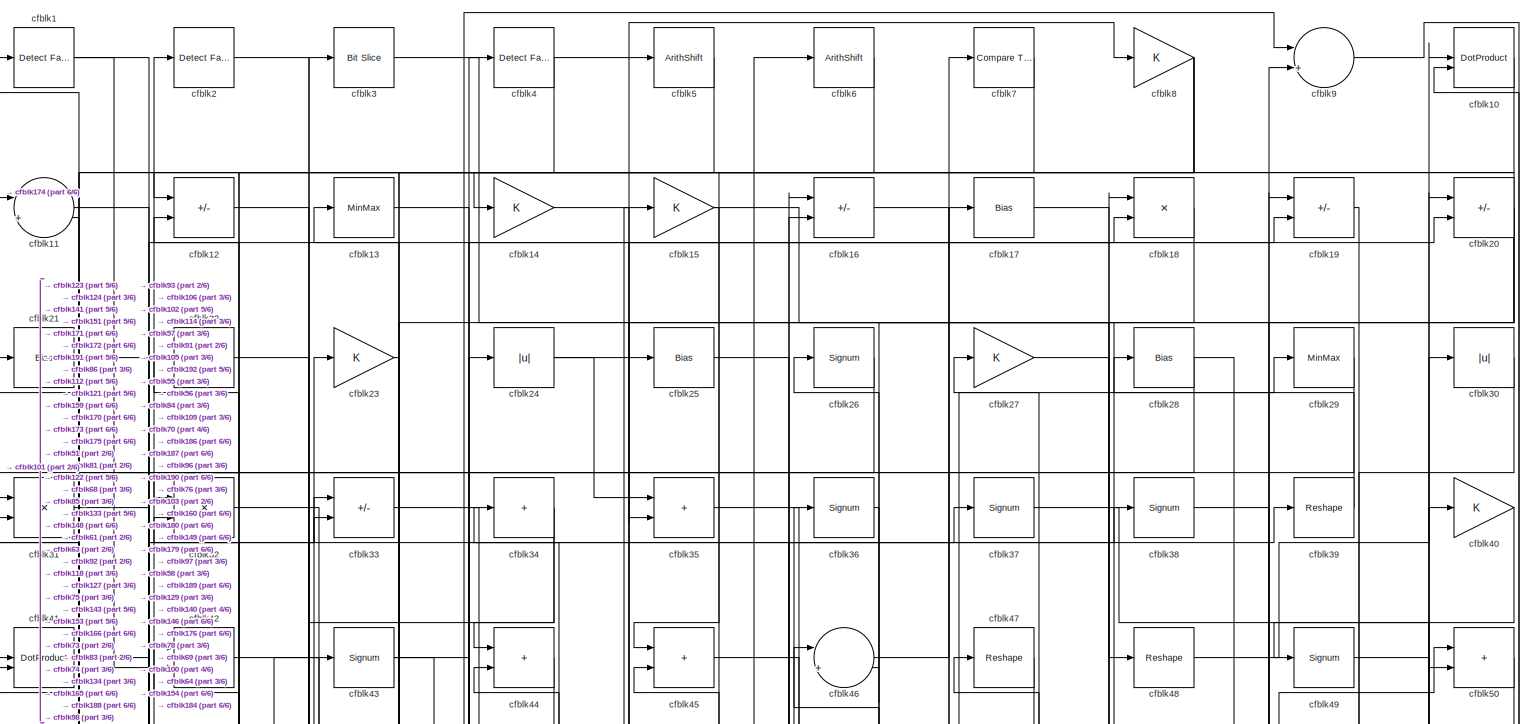
[diagram: root canvas - part 1/6, full width, top band]
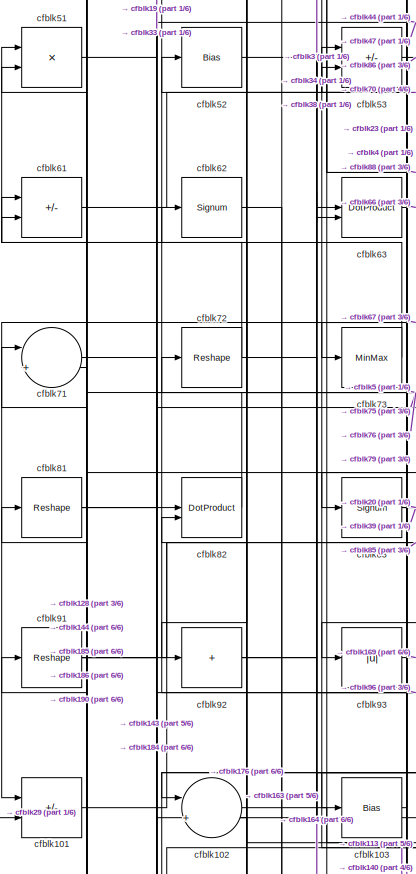
[diagram: root canvas - part 2/6, middle left region]
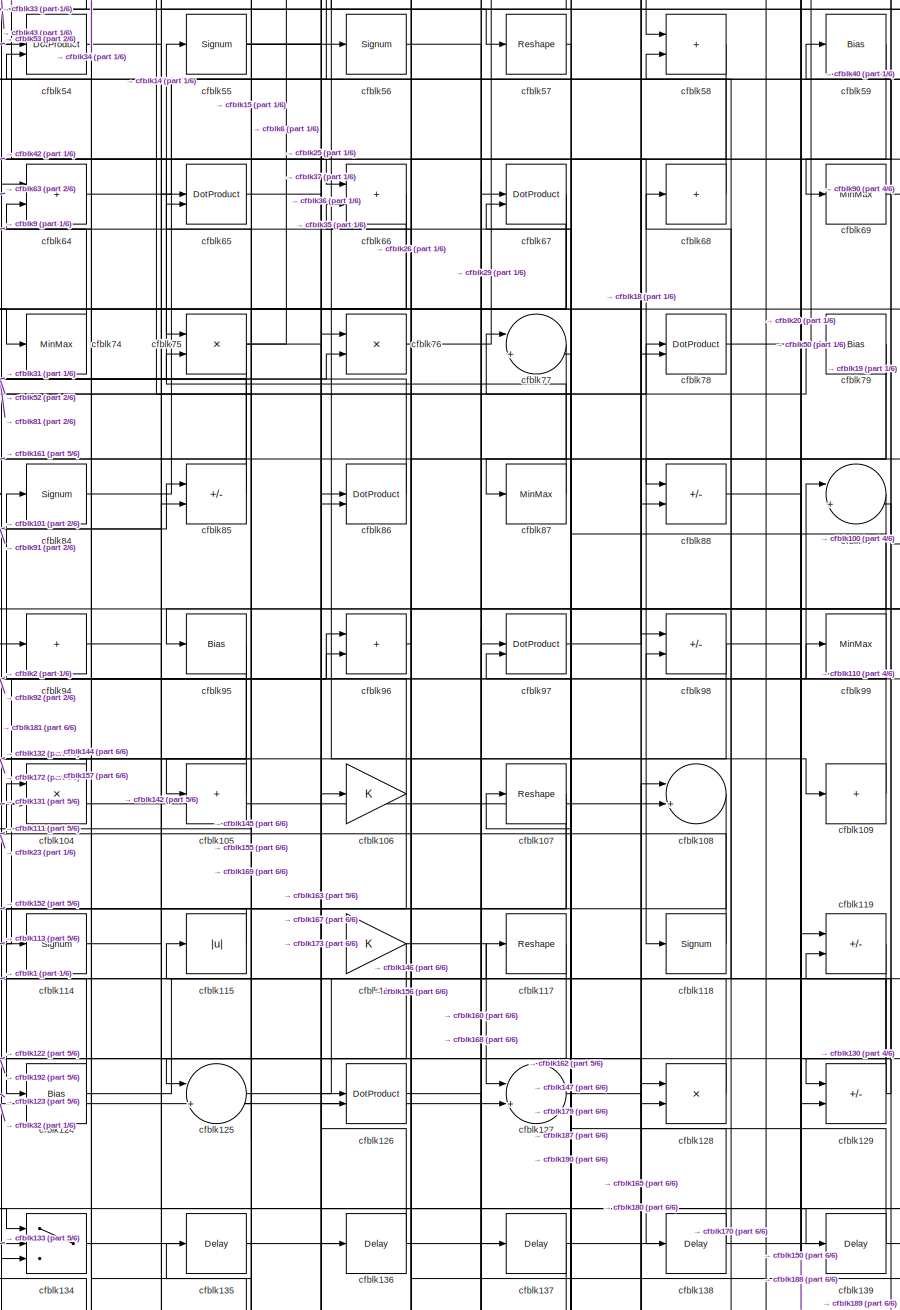
[diagram: root canvas - part 3/6, central region]
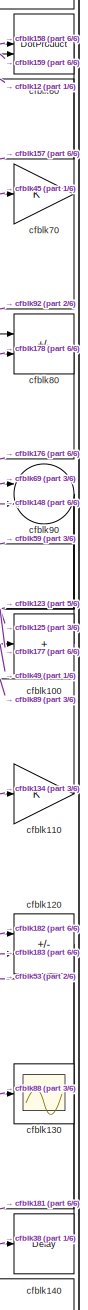
[diagram: root canvas - part 4/6, middle right region]
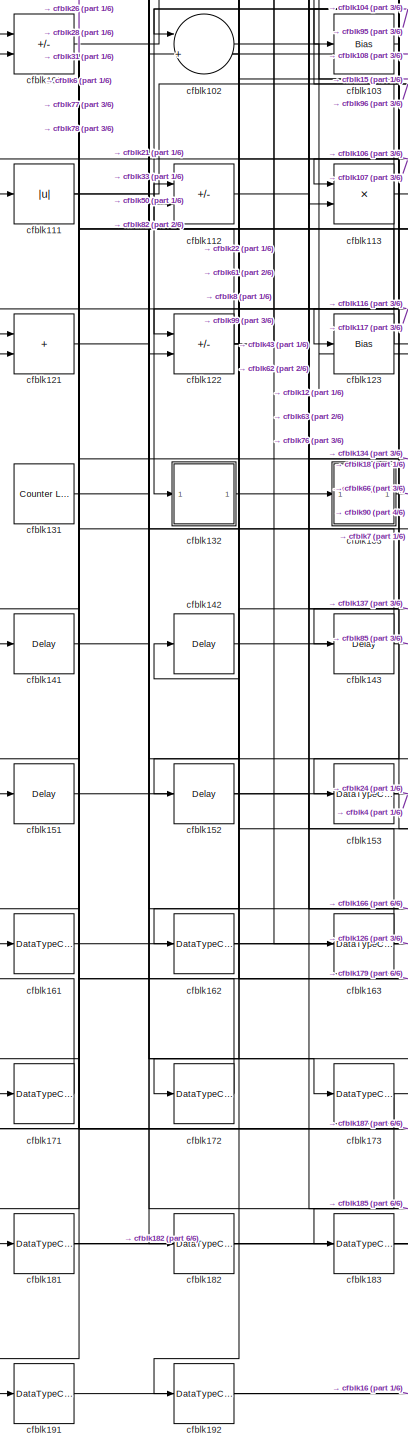
[diagram: root canvas - part 5/6, bottom left region]
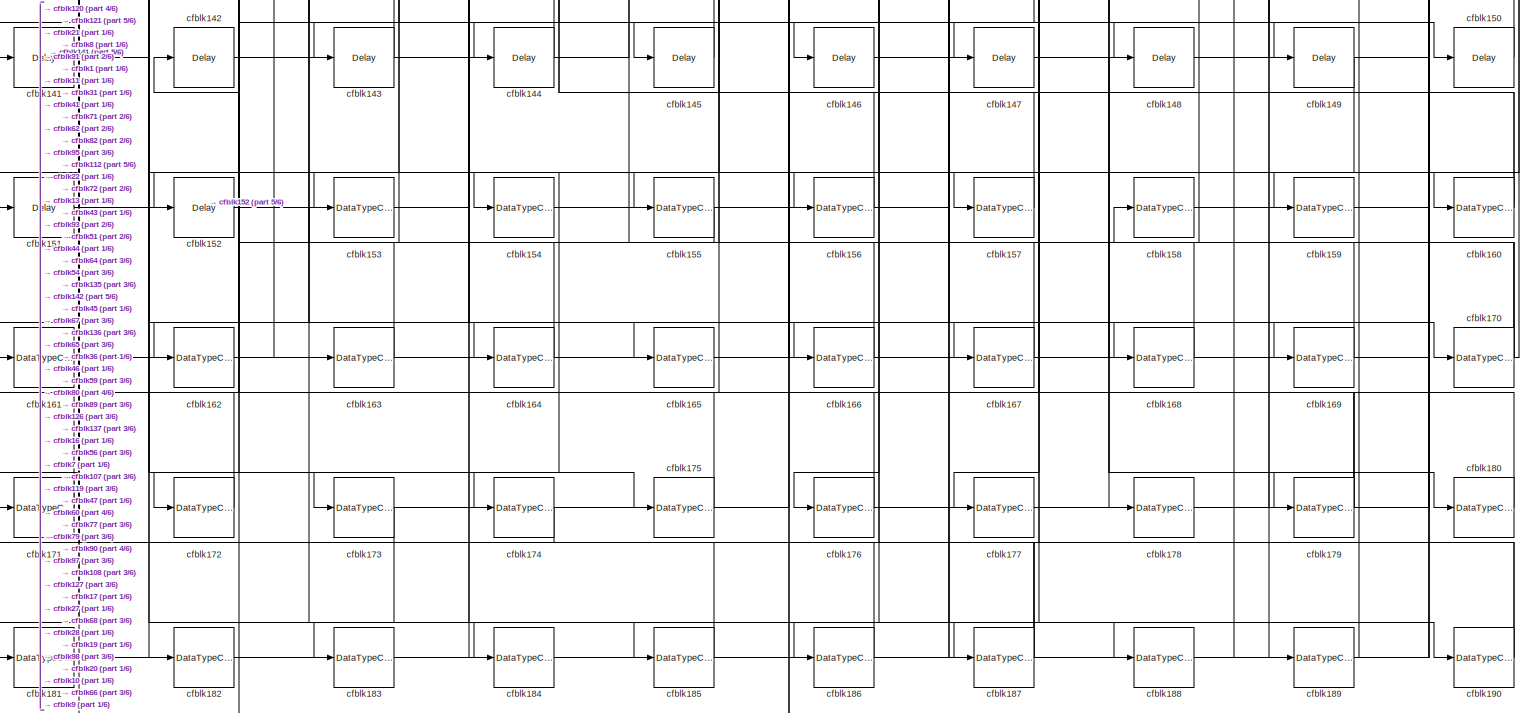
[diagram: root canvas - part 6/6, full width, bottom band]
MODEL slx_b2b5b32f064a
KIND model
CONFIG AbsTol = auto
CONFIG EnableMultiTasking = off
CONFIG FixedStep = auto
CONFIG MaxStep = auto
CONFIG MinStep = auto
CONFIG RelTol = 1e-3
CONFIG SampleTimeConstraint = Unconstrained
CONFIG SolverName = VariableStepAuto
CONFIG StartTime = 0.0
CONFIG StopTime = 10.0
BLOCK [Reference] cfblk1  REF=hdlsllib/Logic and Bit
Operations/Detect Fall
Negative
  SourceBlock = hdlsllib/Logic and Bit\nOperations/Detect Fall\nNegative
  SourceType = Detect Fall Negative
BLOCK [DotProduct] cfblk10
  OutDataTypeStr = Inherit: Inherit via internal rule
BLOCK [Sum] cfblk100
  IconShape = rectangular
  Inputs = +
BLOCK [Sum] cfblk101
  IconShape = rectangular
  Inputs = +-
BLOCK [Sum] cfblk102
  Inputs = |++
BLOCK [Bias] cfblk103
  Bias = 0.0
  SaturateOnIntegerOverflow = off
BLOCK [Product] cfblk104
  Inputs = */
  RndMeth = Zero
  SaturateOnIntegerOverflow = on
BLOCK [Sum] cfblk105
  IconShape = rectangular
  Inputs = +
BLOCK [Gain] cfblk106
BLOCK [Reshape] cfblk107
BLOCK [Sum] cfblk108
  Inputs = |++
BLOCK [Sum] cfblk109
  IconShape = rectangular
  Inputs = +
BLOCK [Sum] cfblk11
  Inputs = |++
BLOCK [Gain] cfblk110
BLOCK [Abs] cfblk111
  SaturateOnIntegerOverflow = off
BLOCK [Sum] cfblk112
  IconShape = rectangular
  Inputs = +-
BLOCK [Product] cfblk113
  Inputs = */
  RndMeth = Zero
  SaturateOnIntegerOverflow = on
BLOCK [Signum] cfblk114
BLOCK [Abs] cfblk115
  SaturateOnIntegerOverflow = off
BLOCK [Gain] cfblk116
BLOCK [Reshape] cfblk117
BLOCK [Signum] cfblk118
BLOCK [Sum] cfblk119
  IconShape = rectangular
  Inputs = +-
BLOCK [Sum] cfblk12
  IconShape = rectangular
  Inputs = +-
BLOCK [Sum] cfblk120
  IconShape = rectangular
  Inputs = +-
BLOCK [Sum] cfblk121
  IconShape = rectangular
BLOCK [Sum] cfblk122
  IconShape = rectangular
  Inputs = +-
BLOCK [Bias] cfblk123
  Bias = 0.0
  SaturateOnIntegerOverflow = off
BLOCK [Bias] cfblk124
  Bias = 0.0
  SaturateOnIntegerOverflow = off
BLOCK [Sum] cfblk125
  Inputs = |++
BLOCK [DotProduct] cfblk126
  OutDataTypeStr = Inherit: Inherit via internal rule
BLOCK [Sum] cfblk127
  Inputs = |++
BLOCK [Product] cfblk128
  Inputs = */
  RndMeth = Zero
  SaturateOnIntegerOverflow = on
BLOCK [Sum] cfblk129
  IconShape = rectangular
  Inputs = +-
BLOCK [MinMax] cfblk13
BLOCK [Scope] cfblk130
  Floating = off
  NumInputPorts = 1
  ScopeSpecificationString = Simulink.scopes.TimeScopeBlockCfg('CurrentConfiguration', extmgr.ConfigurationSet(extmgr.Configuration('Core','General UI',true),extmgr.Configuration('Core','Source UI',true),extmgr.Configuration('Sources','WiredSimulink',true,'DataLoggingVariableName','ScopeData2','DataLoggingSaveFormat','Array','DataLoggingLimitDataPoints',true,'DataLoggingDecimation','1'),extmgr.Configuration('Visuals','Time Do...<+868ch>
BLOCK [Reference] cfblk131  REF=hdlsllib/Sources/Counter
Limited
  SourceBlock = hdlsllib/Sources/Counter\nLimited
  SourceType = Counter Limited
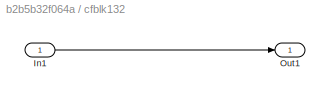
BLOCK [SubSystem] cfblk132
  LibrarySourceBlock = hdlsllib/Ports &\nSubsystems/Subsystem
BLOCK [Inport] cfblk132/In1
BLOCK [Outport] cfblk132/Out1
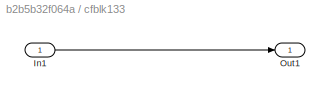
BLOCK [SubSystem] cfblk133
  LibrarySourceBlock = hdlsllib/Ports &\nSubsystems/Subsystem
BLOCK [Inport] cfblk133/In1
BLOCK [Outport] cfblk133/Out1
BLOCK [Switch] cfblk134
  InputSameDT = off
  SaturateOnIntegerOverflow = off
BLOCK [Delay] cfblk135
  InputPortMap = u0
  SampleTime = 1
BLOCK [Delay] cfblk136
  InputPortMap = u0
  SampleTime = 1
BLOCK [Delay] cfblk137
  InputPortMap = u0
  SampleTime = 1
BLOCK [Delay] cfblk138
  InputPortMap = u0
  SampleTime = 1
BLOCK [Delay] cfblk139
  InputPortMap = u0
  SampleTime = 1
BLOCK [Gain] cfblk14
BLOCK [Delay] cfblk140
  InputPortMap = u0
  SampleTime = 1
BLOCK [Delay] cfblk141
  InputPortMap = u0
  SampleTime = 1
BLOCK [Delay] cfblk142
  InputPortMap = u0
  SampleTime = 1
BLOCK [Delay] cfblk143
  InputPortMap = u0
  SampleTime = 1
BLOCK [Delay] cfblk144
  InputPortMap = u0
  SampleTime = 1
BLOCK [Delay] cfblk145
  InputPortMap = u0
  SampleTime = 1
BLOCK [Delay] cfblk146
  InputPortMap = u0
  SampleTime = 1
BLOCK [Delay] cfblk147
  InputPortMap = u0
  SampleTime = 1
BLOCK [Delay] cfblk148
  InputPortMap = u0
  SampleTime = 1
BLOCK [Delay] cfblk149
  InputPortMap = u0
  SampleTime = 1
BLOCK [Gain] cfblk15
BLOCK [Delay] cfblk150
  InputPortMap = u0
  SampleTime = 1
BLOCK [Delay] cfblk151
  InputPortMap = u0
  SampleTime = 1
BLOCK [Delay] cfblk152
  InputPortMap = u0
  SampleTime = 1
BLOCK [DataTypeConversion] cfblk153
  OutDataTypeStr = uint8
  RndMeth = Floor
  SaturateOnIntegerOverflow = off
BLOCK [DataTypeConversion] cfblk154
  OutDataTypeStr = uint8
  RndMeth = Floor
  SaturateOnIntegerOverflow = off
BLOCK [DataTypeConversion] cfblk155
  OutDataTypeStr = uint8
  RndMeth = Floor
  SaturateOnIntegerOverflow = off
BLOCK [DataTypeConversion] cfblk156
  OutDataTypeStr = uint8
  RndMeth = Floor
  SaturateOnIntegerOverflow = off
BLOCK [DataTypeConversion] cfblk157
  OutDataTypeStr = uint8
  RndMeth = Floor
  SaturateOnIntegerOverflow = off
BLOCK [DataTypeConversion] cfblk158
  OutDataTypeStr = uint8
  RndMeth = Floor
  SaturateOnIntegerOverflow = off
BLOCK [DataTypeConversion] cfblk159
  OutDataTypeStr = uint8
  RndMeth = Floor
  SaturateOnIntegerOverflow = off
BLOCK [Sum] cfblk16
  IconShape = rectangular
  Inputs = +-
BLOCK [DataTypeConversion] cfblk160
  RndMeth = Floor
  SaturateOnIntegerOverflow = off
BLOCK [DataTypeConversion] cfblk161
  OutDataTypeStr = uint8
  RndMeth = Floor
  SaturateOnIntegerOverflow = off
BLOCK [DataTypeConversion] cfblk162
  OutDataTypeStr = uint8
  RndMeth = Floor
  SaturateOnIntegerOverflow = off
BLOCK [DataTypeConversion] cfblk163
  RndMeth = Floor
  SaturateOnIntegerOverflow = off
BLOCK [DataTypeConversion] cfblk164
  OutDataTypeStr = uint8
  RndMeth = Floor
  SaturateOnIntegerOverflow = off
BLOCK [DataTypeConversion] cfblk165
  RndMeth = Floor
  SaturateOnIntegerOverflow = off
BLOCK [DataTypeConversion] cfblk166
  OutDataTypeStr = uint8
  RndMeth = Floor
  SaturateOnIntegerOverflow = off
BLOCK [DataTypeConversion] cfblk167
  OutDataTypeStr = uint8
  RndMeth = Floor
  SaturateOnIntegerOverflow = off
BLOCK [DataTypeConversion] cfblk168
  OutDataTypeStr = uint8
  RndMeth = Floor
  SaturateOnIntegerOverflow = off
BLOCK [DataTypeConversion] cfblk169
  OutDataTypeStr = uint8
  RndMeth = Floor
  SaturateOnIntegerOverflow = off
BLOCK [Bias] cfblk17
  Bias = 0.0
  SaturateOnIntegerOverflow = off
BLOCK [DataTypeConversion] cfblk170
  RndMeth = Floor
  SaturateOnIntegerOverflow = off
BLOCK [DataTypeConversion] cfblk171
  OutDataTypeStr = uint8
  RndMeth = Floor
  SaturateOnIntegerOverflow = off
BLOCK [DataTypeConversion] cfblk172
  OutDataTypeStr = uint8
  RndMeth = Floor
  SaturateOnIntegerOverflow = off
BLOCK [DataTypeConversion] cfblk173
  RndMeth = Floor
  SaturateOnIntegerOverflow = off
BLOCK [DataTypeConversion] cfblk174
  OutDataTypeStr = uint8
  RndMeth = Floor
  SaturateOnIntegerOverflow = off
BLOCK [DataTypeConversion] cfblk175
  OutDataTypeStr = uint8
  RndMeth = Floor
  SaturateOnIntegerOverflow = off
BLOCK [DataTypeConversion] cfblk176
  RndMeth = Floor
  SaturateOnIntegerOverflow = off
BLOCK [DataTypeConversion] cfblk177
  OutDataTypeStr = uint8
  RndMeth = Floor
  SaturateOnIntegerOverflow = off
BLOCK [DataTypeConversion] cfblk178
  OutDataTypeStr = uint8
  RndMeth = Floor
  SaturateOnIntegerOverflow = off
BLOCK [DataTypeConversion] cfblk179
  RndMeth = Floor
  SaturateOnIntegerOverflow = off
BLOCK [Product] cfblk18
  Inputs = */
  RndMeth = Zero
  SaturateOnIntegerOverflow = on
BLOCK [DataTypeConversion] cfblk180
  OutDataTypeStr = uint8
  RndMeth = Floor
  SaturateOnIntegerOverflow = off
BLOCK [DataTypeConversion] cfblk181
  RndMeth = Floor
  SaturateOnIntegerOverflow = off
BLOCK [DataTypeConversion] cfblk182
  OutDataTypeStr = uint8
  RndMeth = Floor
  SaturateOnIntegerOverflow = off
BLOCK [DataTypeConversion] cfblk183
  OutDataTypeStr = uint8
  RndMeth = Floor
  SaturateOnIntegerOverflow = off
BLOCK [DataTypeConversion] cfblk184
  OutDataTypeStr = uint8
  RndMeth = Floor
  SaturateOnIntegerOverflow = off
BLOCK [DataTypeConversion] cfblk185
  OutDataTypeStr = uint8
  RndMeth = Floor
  SaturateOnIntegerOverflow = off
BLOCK [DataTypeConversion] cfblk186
  OutDataTypeStr = uint8
  RndMeth = Floor
  SaturateOnIntegerOverflow = off
BLOCK [DataTypeConversion] cfblk187
  RndMeth = Floor
  SaturateOnIntegerOverflow = off
BLOCK [DataTypeConversion] cfblk188
  OutDataTypeStr = uint8
  RndMeth = Floor
  SaturateOnIntegerOverflow = off
BLOCK [DataTypeConversion] cfblk189
  OutDataTypeStr = uint8
  RndMeth = Floor
  SaturateOnIntegerOverflow = off
BLOCK [Sum] cfblk19
  IconShape = rectangular
  Inputs = +-
BLOCK [DataTypeConversion] cfblk190
  RndMeth = Floor
  SaturateOnIntegerOverflow = off
BLOCK [DataTypeConversion] cfblk191
  OutDataTypeStr = uint8
  RndMeth = Floor
  SaturateOnIntegerOverflow = off
BLOCK [DataTypeConversion] cfblk192
  OutDataTypeStr = uint8
  RndMeth = Floor
  SaturateOnIntegerOverflow = off
BLOCK [Reference] cfblk2  REF=hdlsllib/Logic and Bit
Operations/Detect Fall
Nonpositive
  SourceBlock = hdlsllib/Logic and Bit\nOperations/Detect Fall\nNonpositive
  SourceType = Detect Fall Nonpositive
BLOCK [Sum] cfblk20
  IconShape = rectangular
  Inputs = +-
BLOCK [Bias] cfblk21
  Bias = 0.0
  SaturateOnIntegerOverflow = off
BLOCK [Sum] cfblk22
  IconShape = rectangular
  Inputs = +
BLOCK [Gain] cfblk23
BLOCK [Abs] cfblk24
  SaturateOnIntegerOverflow = off
BLOCK [Bias] cfblk25
  Bias = 0.0
  SaturateOnIntegerOverflow = off
BLOCK [Signum] cfblk26
BLOCK [Gain] cfblk27
BLOCK [Bias] cfblk28
  Bias = 0.0
  SaturateOnIntegerOverflow = off
BLOCK [MinMax] cfblk29
BLOCK [Reference] cfblk3  REF=hdlsllib/Logic and Bit
Operations/Bit Slice
  SourceBlock = hdlsllib/Logic and Bit\nOperations/Bit Slice
  SourceType = Bit Slice
BLOCK [Abs] cfblk30
  SaturateOnIntegerOverflow = off
BLOCK [Product] cfblk31
  Inputs = */
  RndMeth = Zero
  SaturateOnIntegerOverflow = on
BLOCK [Product] cfblk32
  Inputs = */
  RndMeth = Zero
  SaturateOnIntegerOverflow = on
BLOCK [Sum] cfblk33
  IconShape = rectangular
  Inputs = +-
BLOCK [Sum] cfblk34
  IconShape = rectangular
  Inputs = +
BLOCK [Sum] cfblk35
  IconShape = rectangular
BLOCK [Signum] cfblk36
BLOCK [Signum] cfblk37
BLOCK [Signum] cfblk38
BLOCK [Reshape] cfblk39
BLOCK [Reference] cfblk4  REF=hdlsllib/Logic and Bit
Operations/Detect Fall
Negative
  SourceBlock = hdlsllib/Logic and Bit\nOperations/Detect Fall\nNegative
  SourceType = Detect Fall Negative
BLOCK [Gain] cfblk40
BLOCK [DotProduct] cfblk41
  OutDataTypeStr = Inherit: Inherit via internal rule
BLOCK [Sum] cfblk42
  IconShape = rectangular
BLOCK [Signum] cfblk43
BLOCK [Sum] cfblk44
  IconShape = rectangular
BLOCK [Sum] cfblk45
  IconShape = rectangular
BLOCK [Sum] cfblk46
  Inputs = |++
BLOCK [Reshape] cfblk47
BLOCK [Reshape] cfblk48
BLOCK [Signum] cfblk49
BLOCK [ArithShift] cfblk5
  BitShiftNumber = 8
  InputPortMap = u0
BLOCK [Sum] cfblk50
  IconShape = rectangular
BLOCK [Product] cfblk51
  Inputs = */
  RndMeth = Zero
  SaturateOnIntegerOverflow = on
BLOCK [Bias] cfblk52
  Bias = 0.0
  SaturateOnIntegerOverflow = off
BLOCK [Sum] cfblk53
  IconShape = rectangular
  Inputs = +-
BLOCK [DotProduct] cfblk54
  OutDataTypeStr = Inherit: Inherit via internal rule
BLOCK [Signum] cfblk55
BLOCK [Signum] cfblk56
BLOCK [Reshape] cfblk57
BLOCK [Sum] cfblk58
  IconShape = rectangular
BLOCK [Bias] cfblk59
  Bias = 0.0
  SaturateOnIntegerOverflow = off
BLOCK [ArithShift] cfblk6
  BitShiftNumber = 8
  InputPortMap = u0
BLOCK [DotProduct] cfblk60
  OutDataTypeStr = Inherit: Inherit via internal rule
BLOCK [Sum] cfblk61
  IconShape = rectangular
  Inputs = +-
BLOCK [Signum] cfblk62
BLOCK [DotProduct] cfblk63
  OutDataTypeStr = Inherit: Inherit via internal rule
BLOCK [Sum] cfblk64
  IconShape = rectangular
BLOCK [DotProduct] cfblk65
  OutDataTypeStr = Inherit: Inherit via internal rule
BLOCK [Sum] cfblk66
  IconShape = rectangular
BLOCK [DotProduct] cfblk67
  OutDataTypeStr = Inherit: Inherit via internal rule
BLOCK [Sum] cfblk68
  IconShape = rectangular
  Inputs = +
BLOCK [MinMax] cfblk69
BLOCK [Reference] cfblk7  REF=hdlsllib/Logic and Bit
Operations/Compare
To Zero
  SourceBlock = hdlsllib/Logic and Bit\nOperations/Compare\nTo Zero
  SourceType = Compare To Zero
BLOCK [Gain] cfblk70
BLOCK [Sum] cfblk71
  Inputs = |++
BLOCK [Reshape] cfblk72
BLOCK [MinMax] cfblk73
BLOCK [MinMax] cfblk74
BLOCK [Product] cfblk75
  Inputs = */
  RndMeth = Zero
  SaturateOnIntegerOverflow = on
BLOCK [Product] cfblk76
  Inputs = */
  RndMeth = Zero
  SaturateOnIntegerOverflow = on
BLOCK [Sum] cfblk77
  Inputs = |++
BLOCK [DotProduct] cfblk78
  OutDataTypeStr = Inherit: Inherit via internal rule
BLOCK [Bias] cfblk79
  Bias = 0.0
  SaturateOnIntegerOverflow = off
BLOCK [Gain] cfblk8
BLOCK [Sum] cfblk80
  IconShape = rectangular
  Inputs = +-
BLOCK [Reshape] cfblk81
BLOCK [DotProduct] cfblk82
  OutDataTypeStr = Inherit: Inherit via internal rule
BLOCK [Signum] cfblk83
BLOCK [Signum] cfblk84
BLOCK [Sum] cfblk85
  IconShape = rectangular
  Inputs = +-
BLOCK [DotProduct] cfblk86
  OutDataTypeStr = Inherit: Inherit via internal rule
BLOCK [MinMax] cfblk87
BLOCK [Sum] cfblk88
  IconShape = rectangular
  Inputs = +-
BLOCK [Sum] cfblk89
  Inputs = |++
BLOCK [Sum] cfblk9
  Inputs = |++
BLOCK [Sum] cfblk90
  Inputs = |++
BLOCK [Reshape] cfblk91
BLOCK [Sum] cfblk92
  IconShape = rectangular
  Inputs = +
BLOCK [Abs] cfblk93
  SaturateOnIntegerOverflow = off
BLOCK [Sum] cfblk94
  IconShape = rectangular
  Inputs = +
BLOCK [Bias] cfblk95
  Bias = 0.0
  SaturateOnIntegerOverflow = off
BLOCK [Sum] cfblk96
  IconShape = rectangular
BLOCK [DotProduct] cfblk97
  OutDataTypeStr = Inherit: Inherit via internal rule
BLOCK [Sum] cfblk98
  IconShape = rectangular
  Inputs = +-
BLOCK [MinMax] cfblk99
LINE cfblk100:1 -> cfblk59:1
LINE cfblk101:1 -> cfblk85:1
LINE cfblk102:1 -> cfblk15:1
LINE cfblk103:1 -> cfblk53:1
LINE cfblk104:1 -> cfblk132:1
LINE cfblk105:1 -> cfblk2:1
NET cfblk106:1 -> cfblk152:1, cfblk34:1
NET cfblk107:1 -> cfblk111:1, cfblk125:2
LINE cfblk108:1 -> cfblk124:1
LINE cfblk109:1 -> cfblk84:1
LINE cfblk10:1 -> cfblk45:1
LINE cfblk110:1 -> cfblk89:1
NET cfblk111:1 -> cfblk104:1, cfblk96:1
LINE cfblk112:1 -> cfblk185:1
NET cfblk113:1 -> cfblk121:2, cfblk61:2, cfblk99:1
LINE cfblk114:1 -> cfblk25:1
LINE cfblk115:1 -> cfblk114:1
NET cfblk116:1 -> cfblk127:1, cfblk192:1
LINE cfblk117:1 -> cfblk122:1
LINE cfblk118:1 -> cfblk23:1
LINE cfblk119:1 -> cfblk187:1
LINE cfblk11:1 -> cfblk173:1
LINE cfblk120:1 -> cfblk181:1
LINE cfblk121:1 -> cfblk33:1
NET cfblk122:1 -> cfblk102:2, cfblk112:1, cfblk22:1, cfblk43:1
NET cfblk123:1 -> cfblk31:1, cfblk78:1
NET cfblk124:1 -> cfblk106:1, cfblk1:1
LINE cfblk125:1 -> cfblk117:1
LINE cfblk126:1 -> cfblk160:1
LINE cfblk127:1 -> cfblk180:1
LINE cfblk128:1 -> cfblk81:1
NET cfblk129:1 -> cfblk115:1, cfblk58:2, cfblk89:2
LINE cfblk12:1 -> cfblk133:1
LINE cfblk131:1 -> cfblk108:2
LINE cfblk132/In1:1 -> cfblk132/Out1:1
LINE cfblk132:1 -> cfblk134:1
LINE cfblk133/In1:1 -> cfblk133/Out1:1
LINE cfblk133:1 -> cfblk94:1
LINE cfblk134:1 -> cfblk110:1
LINE cfblk135:1 -> cfblk155:1
LINE cfblk136:1 -> cfblk86:1
LINE cfblk137:1 -> cfblk162:1
LINE cfblk138:1 -> cfblk64:1
LINE cfblk139:1 -> cfblk128:1
LINE cfblk13:1 -> cfblk165:1
LINE cfblk140:1 -> cfblk53:2
LINE cfblk141:1 -> cfblk182:1
LINE cfblk142:1 -> cfblk85:2
LINE cfblk143:1 -> cfblk82:1
LINE cfblk144:1 -> cfblk51:2
LINE cfblk145:1 -> cfblk54:2
LINE cfblk146:1 -> cfblk19:1
LINE cfblk147:1 -> cfblk178:1
LINE cfblk148:1 -> cfblk90:2
LINE cfblk149:1 -> cfblk174:1
LINE cfblk14:1 -> cfblk57:1
LINE cfblk150:1 -> cfblk66:2
LINE cfblk151:1 -> cfblk4:1
LINE cfblk152:1 -> cfblk166:1
LINE cfblk153:1 -> cfblk24:1
LINE cfblk154:1 -> cfblk7:1
LINE cfblk155:1 -> cfblk158:1
LINE cfblk156:1 -> cfblk135:1
LINE cfblk157:1 -> cfblk64:2
LINE cfblk158:1 -> cfblk60:1
LINE cfblk159:1 -> cfblk60:2
NET cfblk15:1 -> cfblk105:1, cfblk58:1
NET cfblk160:1 -> cfblk44:2, cfblk47:1
LINE cfblk161:1 -> cfblk126:1
LINE cfblk162:1 -> cfblk126:2
NET cfblk163:1 -> cfblk63:1, cfblk76:1
LINE cfblk164:1 -> cfblk62:1
NET cfblk165:1 -> cfblk108:1, cfblk20:1
LINE cfblk166:1 -> cfblk13:1
LINE cfblk167:1 -> cfblk67:1
LINE cfblk168:1 -> cfblk65:1
LINE cfblk169:1 -> cfblk65:2
LINE cfblk16:1 -> cfblk190:1
NET cfblk170:1 -> cfblk10:2, cfblk67:2, cfblk68:1, cfblk77:1
LINE cfblk171:1 -> cfblk41:1
LINE cfblk172:1 -> cfblk41:2
NET cfblk173:1 -> cfblk136:1, cfblk183:1
LINE cfblk174:1 -> cfblk11:1
LINE cfblk175:1 -> cfblk11:2
NET cfblk176:1 -> cfblk82:2, cfblk9:2
LINE cfblk177:1 -> cfblk80:1
LINE cfblk178:1 -> cfblk80:2
NET cfblk179:1 -> cfblk142:1, cfblk45:2, cfblk97:2
LINE cfblk17:1 -> cfblk149:1
LINE cfblk180:1 -> cfblk27:1
NET cfblk181:1 -> cfblk137:1, cfblk54:1, cfblk97:1
LINE cfblk182:1 -> cfblk120:1
LINE cfblk183:1 -> cfblk120:2
LINE cfblk184:1 -> cfblk10:1
LINE cfblk185:1 -> cfblk71:1
LINE cfblk186:1 -> cfblk71:2
NET cfblk187:1 -> cfblk121:1, cfblk21:1, cfblk46:1
LINE cfblk188:1 -> cfblk119:1
LINE cfblk189:1 -> cfblk119:2
LINE cfblk18:1 -> cfblk143:1
NET cfblk190:1 -> cfblk107:1, cfblk91:1
LINE cfblk191:1 -> cfblk16:1
LINE cfblk192:1 -> cfblk16:2
LINE cfblk19:1 -> cfblk129:1
NET cfblk1:1 -> cfblk159:1, cfblk42:2
NET cfblk20:1 -> cfblk129:2, cfblk14:1, cfblk35:2, cfblk46:2
LINE cfblk21:1 -> cfblk112:2
LINE cfblk22:1 -> cfblk148:1
LINE cfblk23:1 -> cfblk73:1
NET cfblk24:1 -> cfblk18:2, cfblk35:1
LINE cfblk25:1 -> cfblk56:1
LINE cfblk26:1 -> cfblk141:1
LINE cfblk27:1 -> cfblk179:1
NET cfblk28:1 -> cfblk151:1, cfblk189:1
LINE cfblk29:1 -> cfblk101:2
LINE cfblk2:1 -> cfblk74:1
LINE cfblk30:1 -> cfblk49:1
LINE cfblk31:1 -> cfblk175:1
LINE cfblk32:1 -> cfblk127:2
LINE cfblk33:1 -> cfblk98:1
NET cfblk34:1 -> cfblk44:1, cfblk63:2
LINE cfblk35:1 -> cfblk109:1
LINE cfblk36:1 -> cfblk186:1
LINE cfblk37:1 -> cfblk50:2
LINE cfblk38:1 -> cfblk140:1
LINE cfblk39:1 -> cfblk28:1
LINE cfblk3:1 -> cfblk48:1
LINE cfblk40:1 -> cfblk69:1
LINE cfblk41:1 -> cfblk170:1
LINE cfblk42:1 -> cfblk75:1
NET cfblk43:1 -> cfblk134:2, cfblk188:1
LINE cfblk44:1 -> cfblk93:1
LINE cfblk45:1 -> cfblk70:1
LINE cfblk46:1 -> cfblk17:1
LINE cfblk47:1 -> cfblk103:1
LINE cfblk48:1 -> cfblk30:1
LINE cfblk49:1 -> cfblk100:1
NET cfblk4:1 -> cfblk83:1, cfblk8:1
LINE cfblk50:1 -> cfblk122:2
LINE cfblk51:1 -> cfblk19:2
LINE cfblk52:1 -> cfblk88:1
LINE cfblk53:1 -> cfblk86:2
LINE cfblk54:1 -> cfblk128:2
NET cfblk55:1 -> cfblk116:1, cfblk37:1, cfblk78:2
LINE cfblk56:1 -> cfblk168:1
LINE cfblk57:1 -> cfblk87:1
LINE cfblk58:1 -> cfblk88:2
LINE cfblk59:1 -> cfblk156:1
LINE cfblk5:1 -> cfblk12:1
LINE cfblk60:1 -> cfblk157:1
LINE cfblk61:1 -> cfblk3:1
LINE cfblk62:1 -> cfblk163:1
LINE cfblk63:1 -> cfblk66:1
LINE cfblk64:1 -> cfblk40:1
LINE cfblk65:1 -> cfblk167:1
NET cfblk66:1 -> cfblk113:1, cfblk95:1
NET cfblk67:1 -> cfblk101:1, cfblk144:1, cfblk145:1
LINE cfblk68:1 -> cfblk42:1
LINE cfblk69:1 -> cfblk90:1
LINE cfblk6:1 -> cfblk191:1
NET cfblk70:1 -> cfblk12:2, cfblk92:1
LINE cfblk71:1 -> cfblk184:1
NET cfblk72:1 -> cfblk164:1, cfblk61:1
LINE cfblk73:1 -> cfblk51:1
LINE cfblk74:1 -> cfblk9:1
NET cfblk75:1 -> cfblk134:3, cfblk138:1, cfblk6:1
LINE cfblk76:1 -> cfblk29:1
LINE cfblk77:1 -> cfblk161:1
LINE cfblk78:1 -> cfblk50:1
NET cfblk79:1 -> cfblk118:1, cfblk147:1
LINE cfblk7:1 -> cfblk153:1
LINE cfblk80:1 -> cfblk176:1
NET cfblk81:1 -> cfblk33:2, cfblk75:2
LINE cfblk82:1 -> cfblk72:1
NET cfblk83:1 -> cfblk20:2, cfblk39:1
LINE cfblk84:1 -> cfblk36:1
NET cfblk85:1 -> cfblk32:2, cfblk52:1
LINE cfblk86:1 -> cfblk31:2
LINE cfblk87:1 -> cfblk55:1
LINE cfblk88:1 -> cfblk130:1
LINE cfblk89:1 -> cfblk146:1
NET cfblk8:1 -> cfblk102:1, cfblk171:1, cfblk32:1
NET cfblk90:1 -> cfblk123:1, cfblk125:1, cfblk177:1
NET cfblk91:1 -> cfblk5:1, cfblk76:2, cfblk79:1
NET cfblk92:1 -> cfblk38:1, cfblk96:2
LINE cfblk93:1 -> cfblk169:1
LINE cfblk94:1 -> cfblk139:1
NET cfblk95:1 -> cfblk113:2, cfblk172:1
LINE cfblk96:1 -> cfblk26:1
LINE cfblk97:1 -> cfblk18:1
NET cfblk98:1 -> cfblk104:2, cfblk150:1
NET cfblk99:1 -> cfblk77:2, cfblk98:2
LINE cfblk9:1 -> cfblk154:1
note: NET lines group one-source signal fan-out (src -> all destinations, sorted); 1:1 wires keep LINE
